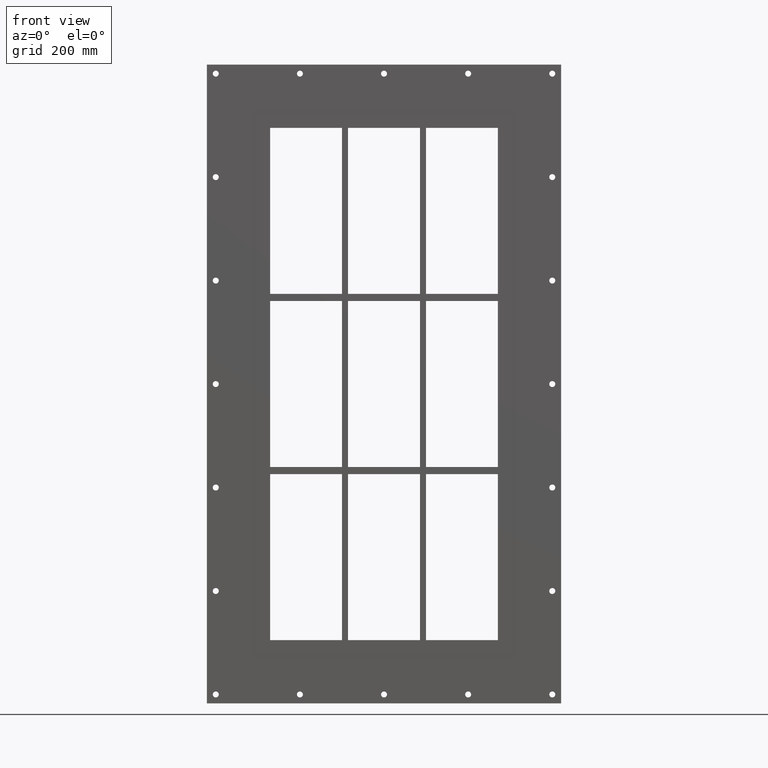
[diagram: clean part render]
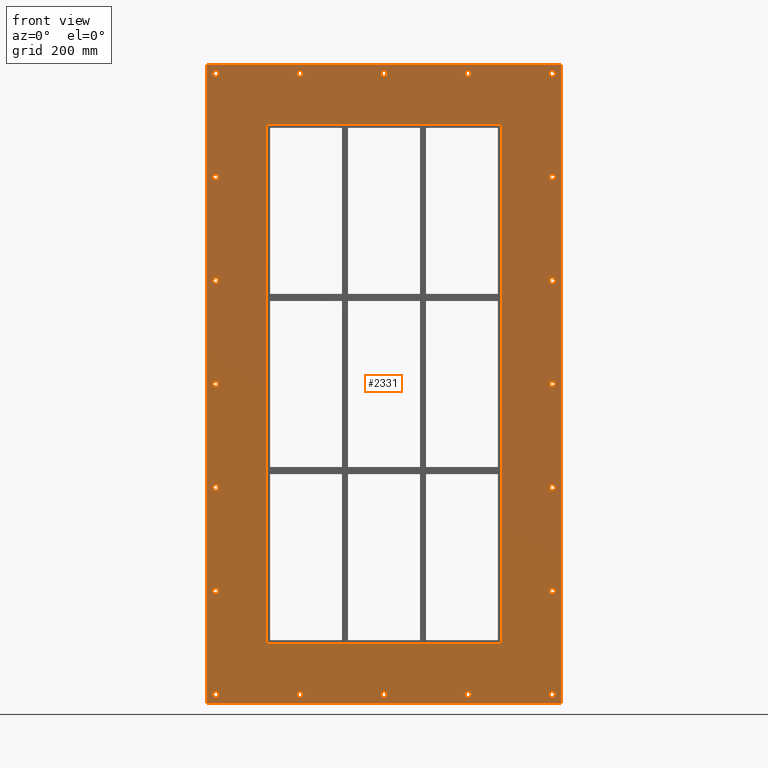
[diagram: same view with one face highlighted and labeled with its STEP entity id]
A machine part, front view. The second image highlights one B-rep face of the part: STEP entity #2331.
In plain terms, the highlighted planar face has unit normal (0, 1, 0).
Its self-contained STEP definition (entity closure, byte-faithful):
#84=CARTESIAN_POINT('',(-276.75000000000011,0.0,-519.99999999999977));
#85=VERTEX_POINT('',#84);
#86=CARTESIAN_POINT('',(-281.75000000000011,0.0,-519.99999999999977));
#87=DIRECTION('',(0.0,1.0,0.0));
#88=DIRECTION('',(1.0,0.0,0.0));
#89=AXIS2_PLACEMENT_3D('',#86,#87,#88);
#90=CIRCLE('',#89,5.0);
#91=EDGE_CURVE('',#85,#85,#90,.T.);
#112=CARTESIAN_POINT('',(286.84999999999997,0.0,-346.6999999999997));
#113=VERTEX_POINT('',#112);
#114=CARTESIAN_POINT('',(281.84999999999997,0.0,-346.6999999999997));
#115=DIRECTION('',(0.0,1.0,0.0));
#116=DIRECTION('',(1.0,0.0,0.0));
#117=AXIS2_PLACEMENT_3D('',#114,#115,#116);
#118=CIRCLE('',#117,5.0);
#119=EDGE_CURVE('',#113,#113,#118,.T.);
#140=CARTESIAN_POINT('',(-276.75000000000011,0.0,-346.6999999999997));
#141=VERTEX_POINT('',#140);
#142=CARTESIAN_POINT('',(-281.75000000000011,0.0,-346.6999999999997));
#143=DIRECTION('',(0.0,1.0,0.0));
#144=DIRECTION('',(1.0,0.0,0.0));
#145=AXIS2_PLACEMENT_3D('',#142,#143,#144);
#146=CIRCLE('',#145,5.0);
#147=EDGE_CURVE('',#141,#141,#146,.T.);
#168=CARTESIAN_POINT('',(286.84999999999997,0.0,-173.39999999999975));
#169=VERTEX_POINT('',#168);
#170=CARTESIAN_POINT('',(281.84999999999997,0.0,-173.39999999999975));
#171=DIRECTION('',(0.0,1.0,0.0));
#172=DIRECTION('',(1.0,0.0,0.0));
#173=AXIS2_PLACEMENT_3D('',#170,#171,#172);
#174=CIRCLE('',#173,5.0);
#175=EDGE_CURVE('',#169,#169,#174,.T.);
#196=CARTESIAN_POINT('',(-276.75000000000011,0.0,-173.39999999999975));
#197=VERTEX_POINT('',#196);
#198=CARTESIAN_POINT('',(-281.75000000000011,0.0,-173.39999999999975));
#199=DIRECTION('',(0.0,1.0,0.0));
#200=DIRECTION('',(1.0,0.0,0.0));
#201=AXIS2_PLACEMENT_3D('',#198,#199,#200);
#202=CIRCLE('',#201,5.0);
#203=EDGE_CURVE('',#197,#197,#202,.T.);
#224=CARTESIAN_POINT('',(286.84999999999997,0.0,-0.099999999999767));
#225=VERTEX_POINT('',#224);
#226=CARTESIAN_POINT('',(281.84999999999997,0.0,-0.099999999999767));
#227=DIRECTION('',(0.0,1.0,0.0));
#228=DIRECTION('',(1.0,0.0,0.0));
#229=AXIS2_PLACEMENT_3D('',#226,#227,#228);
#230=CIRCLE('',#229,5.0);
#231=EDGE_CURVE('',#225,#225,#230,.T.);
#252=CARTESIAN_POINT('',(-276.75000000000011,0.0,-0.099999999999767));
#253=VERTEX_POINT('',#252);
#254=CARTESIAN_POINT('',(-281.75000000000011,0.0,-0.099999999999767));
#255=DIRECTION('',(0.0,1.0,0.0));
#256=DIRECTION('',(1.0,0.0,0.0));
#257=AXIS2_PLACEMENT_3D('',#254,#255,#256);
#258=CIRCLE('',#257,5.0);
#259=EDGE_CURVE('',#253,#253,#258,.T.);
#280=CARTESIAN_POINT('',(286.84999999999997,0.0,173.20000000000022));
#281=VERTEX_POINT('',#280);
#282=CARTESIAN_POINT('',(281.84999999999997,0.0,173.20000000000022));
#283=DIRECTION('',(0.0,1.0,0.0));
#284=DIRECTION('',(1.0,0.0,0.0));
#285=AXIS2_PLACEMENT_3D('',#282,#283,#284);
#286=CIRCLE('',#285,5.0);
#287=EDGE_CURVE('',#281,#281,#286,.T.);
#308=CARTESIAN_POINT('',(-276.75000000000011,0.0,173.20000000000022));
#309=VERTEX_POINT('',#308);
#310=CARTESIAN_POINT('',(-281.75000000000011,0.0,173.20000000000022));
#311=DIRECTION('',(0.0,1.0,0.0));
#312=DIRECTION('',(1.0,0.0,0.0));
#313=AXIS2_PLACEMENT_3D('',#310,#311,#312);
#314=CIRCLE('',#313,5.0);
#315=EDGE_CURVE('',#309,#309,#314,.T.);
#336=CARTESIAN_POINT('',(286.84999999999997,0.0,346.50000000000023));
#337=VERTEX_POINT('',#336);
#338=CARTESIAN_POINT('',(281.84999999999997,0.0,346.50000000000023));
#339=DIRECTION('',(0.0,1.0,0.0));
#340=DIRECTION('',(1.0,0.0,0.0));
#341=AXIS2_PLACEMENT_3D('',#338,#339,#340);
#342=CIRCLE('',#341,5.0);
#343=EDGE_CURVE('',#337,#337,#342,.T.);
#364=CARTESIAN_POINT('',(-276.75000000000011,0.0,346.50000000000023));
#365=VERTEX_POINT('',#364);
#366=CARTESIAN_POINT('',(-281.75000000000011,0.0,346.50000000000023));
#367=DIRECTION('',(0.0,1.0,0.0));
#368=DIRECTION('',(1.0,0.0,0.0));
#369=AXIS2_PLACEMENT_3D('',#366,#367,#368);
#370=CIRCLE('',#369,5.0);
#371=EDGE_CURVE('',#365,#365,#370,.T.);
#392=CARTESIAN_POINT('',(-135.85000000000005,0.0,519.80000000000018));
#393=VERTEX_POINT('',#392);
#394=CARTESIAN_POINT('',(-140.85000000000005,0.0,519.80000000000018));
#395=DIRECTION('',(0.0,1.0,0.0));
#396=DIRECTION('',(1.0,0.0,0.0));
#397=AXIS2_PLACEMENT_3D('',#394,#395,#396);
#398=CIRCLE('',#397,5.0);
#399=EDGE_CURVE('',#393,#393,#398,.T.);
#420=CARTESIAN_POINT('',(-135.85000000000005,0.0,-520.0));
#421=VERTEX_POINT('',#420);
#422=CARTESIAN_POINT('',(-140.85000000000005,0.0,-520.0));
#423=DIRECTION('',(0.0,1.0,0.0));
#424=DIRECTION('',(1.0,0.0,0.0));
#425=AXIS2_PLACEMENT_3D('',#422,#423,#424);
#426=CIRCLE('',#425,5.0);
#427=EDGE_CURVE('',#421,#421,#426,.T.);
#448=CARTESIAN_POINT('',(5.049999999999919,0.0,519.80000000000018));
#449=VERTEX_POINT('',#448);
#450=CARTESIAN_POINT('',(0.049999999999919,0.0,519.80000000000018));
#451=DIRECTION('',(0.0,1.0,0.0));
#452=DIRECTION('',(1.0,0.0,0.0));
#453=AXIS2_PLACEMENT_3D('',#450,#451,#452);
#454=CIRCLE('',#453,5.0);
#455=EDGE_CURVE('',#449,#449,#454,.T.);
#476=CARTESIAN_POINT('',(5.049999999999919,0.0,-520.0));
#477=VERTEX_POINT('',#476);
#478=CARTESIAN_POINT('',(0.049999999999919,0.0,-520.0));
#479=DIRECTION('',(0.0,1.0,0.0));
#480=DIRECTION('',(1.0,0.0,0.0));
#481=AXIS2_PLACEMENT_3D('',#478,#479,#480);
#482=CIRCLE('',#481,5.0);
#483=EDGE_CURVE('',#477,#477,#482,.T.);
#504=CARTESIAN_POINT('',(145.94999999999993,0.0,519.80000000000018));
#505=VERTEX_POINT('',#504);
#506=CARTESIAN_POINT('',(140.94999999999993,0.0,519.80000000000018));
#507=DIRECTION('',(0.0,1.0,0.0));
#508=DIRECTION('',(1.0,0.0,0.0));
#509=AXIS2_PLACEMENT_3D('',#506,#507,#508);
#510=CIRCLE('',#509,5.0);
#511=EDGE_CURVE('',#505,#505,#510,.T.);
#532=CARTESIAN_POINT('',(145.94999999999993,0.0,-520.0));
#533=VERTEX_POINT('',#532);
#534=CARTESIAN_POINT('',(140.94999999999993,0.0,-520.0));
#535=DIRECTION('',(0.0,1.0,0.0));
#536=DIRECTION('',(1.0,0.0,0.0));
#537=AXIS2_PLACEMENT_3D('',#534,#535,#536);
#538=CIRCLE('',#537,5.0);
#539=EDGE_CURVE('',#533,#533,#538,.T.);
#560=CARTESIAN_POINT('',(286.84999999999997,0.0,-520.0));
#561=VERTEX_POINT('',#560);
#562=CARTESIAN_POINT('',(281.84999999999997,0.0,-520.0));
#563=DIRECTION('',(0.0,1.0,0.0));
#564=DIRECTION('',(1.0,0.0,0.0));
#565=AXIS2_PLACEMENT_3D('',#562,#563,#564);
#566=CIRCLE('',#565,5.0);
#567=EDGE_CURVE('',#561,#561,#566,.T.);
#588=CARTESIAN_POINT('',(-276.75000000000011,0.0,519.80000000000018));
#589=VERTEX_POINT('',#588);
#590=CARTESIAN_POINT('',(-281.75000000000011,0.0,519.80000000000018));
#591=DIRECTION('',(0.0,1.0,0.0));
#592=DIRECTION('',(1.0,0.0,0.0));
#593=AXIS2_PLACEMENT_3D('',#590,#591,#592);
#594=CIRCLE('',#593,5.0);
#595=EDGE_CURVE('',#589,#589,#594,.T.);
#616=CARTESIAN_POINT('',(286.84999999999997,0.0,519.80000000000018));
#617=VERTEX_POINT('',#616);
#618=CARTESIAN_POINT('',(281.84999999999997,0.0,519.80000000000018));
#619=DIRECTION('',(0.0,1.0,0.0));
#620=DIRECTION('',(1.0,0.0,0.0));
#621=AXIS2_PLACEMENT_3D('',#618,#619,#620);
#622=CIRCLE('',#621,5.0);
#623=EDGE_CURVE('',#617,#617,#622,.T.);
#2162=CARTESIAN_POINT('',(0.0,0.0,2.050259E-014));
#2163=DIRECTION('',(0.0,1.0,0.0));
#2164=DIRECTION('',(0.0,0.0,1.0));
#2165=AXIS2_PLACEMENT_3D('',#2162,#2163,#2164);
#2166=PLANE('',#2165);
#2167=CARTESIAN_POINT('',(-296.75000000000006,0.0,535.00000000000011));
#2168=VERTEX_POINT('',#2167);
#2169=CARTESIAN_POINT('',(296.75000000000006,0.0,535.00000000000011));
#2170=VERTEX_POINT('',#2169);
#2171=CARTESIAN_POINT('',(-296.75000000000006,0.0,535.00000000000011));
#2172=DIRECTION('',(1.0,0.0,0.0));
#2173=VECTOR('',#2172,593.50000000000011);
#2174=LINE('',#2171,#2173);
#2175=EDGE_CURVE('',#2168,#2170,#2174,.T.);
#2176=ORIENTED_EDGE('',*,*,#2175,.F.);
#2177=CARTESIAN_POINT('',(-296.75000000000006,0.0,-535.0));
#2178=VERTEX_POINT('',#2177);
#2179=CARTESIAN_POINT('',(-296.75000000000006,0.0,-535.0));
#2180=DIRECTION('',(0.0,0.0,1.0));
#2181=VECTOR('',#2180,1070.0);
#2182=LINE('',#2179,#2181);
#2183=EDGE_CURVE('',#2178,#2168,#2182,.T.);
#2184=ORIENTED_EDGE('',*,*,#2183,.F.);
#2185=CARTESIAN_POINT('',(296.75000000000006,0.0,-535.0));
#2186=VERTEX_POINT('',#2185);
#2187=CARTESIAN_POINT('',(296.75000000000006,0.0,-535.0));
#2188=DIRECTION('',(-1.0,0.0,0.0));
#2189=VECTOR('',#2188,593.50000000000011);
#2190=LINE('',#2187,#2189);
#2191=EDGE_CURVE('',#2186,#2178,#2190,.T.);
#2192=ORIENTED_EDGE('',*,*,#2191,.F.);
#2193=CARTESIAN_POINT('',(296.75000000000006,0.0,535.00000000000011));
#2194=DIRECTION('',(0.0,0.0,-1.0));
#2195=VECTOR('',#2194,1070.0);
#2196=LINE('',#2193,#2195);
#2197=EDGE_CURVE('',#2170,#2186,#2196,.T.);
#2198=ORIENTED_EDGE('',*,*,#2197,.F.);
#2199=EDGE_LOOP('',(#2176,#2184,#2192,#2198));
#2200=FACE_OUTER_BOUND('',#2199,.T.);
#2201=ORIENTED_EDGE('',*,*,#91,.T.);
#2202=EDGE_LOOP('',(#2201));
#2203=FACE_BOUND('',#2202,.T.);
#2204=ORIENTED_EDGE('',*,*,#119,.T.);
#2205=EDGE_LOOP('',(#2204));
#2206=FACE_BOUND('',#2205,.T.);
#2207=ORIENTED_EDGE('',*,*,#147,.T.);
#2208=EDGE_LOOP('',(#2207));
#2209=FACE_BOUND('',#2208,.T.);
#2210=ORIENTED_EDGE('',*,*,#175,.T.);
#2211=EDGE_LOOP('',(#2210));
#2212=FACE_BOUND('',#2211,.T.);
#2213=ORIENTED_EDGE('',*,*,#203,.T.);
#2214=EDGE_LOOP('',(#2213));
#2215=FACE_BOUND('',#2214,.T.);
#2216=ORIENTED_EDGE('',*,*,#231,.T.);
#2217=EDGE_LOOP('',(#2216));
#2218=FACE_BOUND('',#2217,.T.);
#2219=ORIENTED_EDGE('',*,*,#259,.T.);
#2220=EDGE_LOOP('',(#2219));
#2221=FACE_BOUND('',#2220,.T.);
#2222=ORIENTED_EDGE('',*,*,#287,.T.);
#2223=EDGE_LOOP('',(#2222));
#2224=FACE_BOUND('',#2223,.T.);
#2225=ORIENTED_EDGE('',*,*,#315,.T.);
#2226=EDGE_LOOP('',(#2225));
#2227=FACE_BOUND('',#2226,.T.);
#2228=ORIENTED_EDGE('',*,*,#343,.T.);
#2229=EDGE_LOOP('',(#2228));
#2230=FACE_BOUND('',#2229,.T.);
#2231=ORIENTED_EDGE('',*,*,#371,.T.);
#2232=EDGE_LOOP('',(#2231));
#2233=FACE_BOUND('',#2232,.T.);
#2234=ORIENTED_EDGE('',*,*,#399,.T.);
#2235=EDGE_LOOP('',(#2234));
#2236=FACE_BOUND('',#2235,.T.);
#2237=ORIENTED_EDGE('',*,*,#427,.T.);
#2238=EDGE_LOOP('',(#2237));
#2239=FACE_BOUND('',#2238,.T.);
#2240=ORIENTED_EDGE('',*,*,#455,.T.);
#2241=EDGE_LOOP('',(#2240));
#2242=FACE_BOUND('',#2241,.T.);
#2243=ORIENTED_EDGE('',*,*,#483,.T.);
#2244=EDGE_LOOP('',(#2243));
#2245=FACE_BOUND('',#2244,.T.);
#2246=ORIENTED_EDGE('',*,*,#511,.T.);
#2247=EDGE_LOOP('',(#2246));
#2248=FACE_BOUND('',#2247,.T.);
#2249=ORIENTED_EDGE('',*,*,#539,.T.);
#2250=EDGE_LOOP('',(#2249));
#2251=FACE_BOUND('',#2250,.T.);
#2252=ORIENTED_EDGE('',*,*,#567,.T.);
#2253=EDGE_LOOP('',(#2252));
#2254=FACE_BOUND('',#2253,.T.);
#2255=ORIENTED_EDGE('',*,*,#595,.T.);
#2256=EDGE_LOOP('',(#2255));
#2257=FACE_BOUND('',#2256,.T.);
#2258=ORIENTED_EDGE('',*,*,#623,.T.);
#2259=EDGE_LOOP('',(#2258));
#2260=FACE_BOUND('',#2259,.T.);
#2261=CARTESIAN_POINT('',(-196.75,0.0,-429.00000000000023));
#2262=VERTEX_POINT('',#2261);
#2263=CARTESIAN_POINT('',(-190.75,0.0,-435.00000000000011));
#2264=VERTEX_POINT('',#2263);
#2265=CARTESIAN_POINT('',(-190.75,0.0,-429.00000000000023));
#2266=DIRECTION('',(0.0,-1.0,0.0));
#2267=DIRECTION('',(-0.707106781186552,0.0,-0.707106781186543));
#2268=AXIS2_PLACEMENT_3D('',#2265,#2266,#2267);
#2269=CIRCLE('',#2268,6.000000000000001);
#2270=EDGE_CURVE('',#2262,#2264,#2269,.T.);
#2271=ORIENTED_EDGE('',*,*,#2270,.F.);
#2272=CARTESIAN_POINT('',(-196.75,0.0,428.99999999999989));
#2273=VERTEX_POINT('',#2272);
#2274=CARTESIAN_POINT('',(-196.75,0.0,428.99999999999994));
#2275=DIRECTION('',(0.0,0.0,-1.0));
#2276=VECTOR('',#2275,858.00000000000011);
#2277=LINE('',#2274,#2276);
#2278=EDGE_CURVE('',#2273,#2262,#2277,.T.);
#2279=ORIENTED_EDGE('',*,*,#2278,.F.);
#2280=CARTESIAN_POINT('',(-190.75,0.0,435.0));
#2281=VERTEX_POINT('',#2280);
#2282=CARTESIAN_POINT('',(-190.75,0.0,428.99999999999989));
#2283=DIRECTION('',(0.0,-1.0,0.0));
#2284=DIRECTION('',(-0.707106781186543,0.0,0.707106781186552));
#2285=AXIS2_PLACEMENT_3D('',#2282,#2283,#2284);
#2286=CIRCLE('',#2285,6.0);
#2287=EDGE_CURVE('',#2281,#2273,#2286,.T.);
#2288=ORIENTED_EDGE('',*,*,#2287,.F.);
#2289=CARTESIAN_POINT('',(190.75000000000006,0.0,435.0));
#2290=VERTEX_POINT('',#2289);
#2291=CARTESIAN_POINT('',(190.75000000000011,0.0,435.0));
#2292=DIRECTION('',(-1.0,0.0,0.0));
#2293=VECTOR('',#2292,381.50000000000011);
#2294=LINE('',#2291,#2293);
#2295=EDGE_CURVE('',#2290,#2281,#2294,.T.);
#2296=ORIENTED_EDGE('',*,*,#2295,.F.);
#2297=CARTESIAN_POINT('',(196.75000000000009,0.0,429.0));
#2298=VERTEX_POINT('',#2297);
#2299=CARTESIAN_POINT('',(190.75000000000006,0.0,429.0));
#2300=DIRECTION('',(0.0,-1.0,0.0));
#2301=DIRECTION('',(0.707106781186543,0.0,0.707106781186552));
#2302=AXIS2_PLACEMENT_3D('',#2299,#2300,#2301);
#2303=CIRCLE('',#2302,6.0);
#2304=EDGE_CURVE('',#2298,#2290,#2303,.T.);
#2305=ORIENTED_EDGE('',*,*,#2304,.F.);
#2306=CARTESIAN_POINT('',(196.75000000000009,0.0,-429.00000000000006));
#2307=VERTEX_POINT('',#2306);
#2308=CARTESIAN_POINT('',(196.75000000000009,0.0,-429.0));
#2309=DIRECTION('',(0.0,0.0,1.0));
#2310=VECTOR('',#2309,858.0);
#2311=LINE('',#2308,#2310);
#2312=EDGE_CURVE('',#2307,#2298,#2311,.T.);
#2313=ORIENTED_EDGE('',*,*,#2312,.F.);
#2314=CARTESIAN_POINT('',(190.75000000000006,0.0,-435.00000000000011));
#2315=VERTEX_POINT('',#2314);
#2316=CARTESIAN_POINT('',(190.75000000000006,0.0,-429.00000000000006));
#2317=DIRECTION('',(0.0,-1.0,0.0));
#2318=DIRECTION('',(0.707106781186543,0.0,-0.707106781186552));
#2319=AXIS2_PLACEMENT_3D('',#2316,#2317,#2318);
#2320=CIRCLE('',#2319,6.0);
#2321=EDGE_CURVE('',#2315,#2307,#2320,.T.);
#2322=ORIENTED_EDGE('',*,*,#2321,.F.);
#2323=CARTESIAN_POINT('',(-190.74999999999994,0.0,-435.00000000000011));
#2324=DIRECTION('',(1.0,0.0,0.0));
#2325=VECTOR('',#2324,381.5);
#2326=LINE('',#2323,#2325);
#2327=EDGE_CURVE('',#2264,#2315,#2326,.T.);
#2328=ORIENTED_EDGE('',*,*,#2327,.F.);
#2329=EDGE_LOOP('',(#2271,#2279,#2288,#2296,#2305,#2313,#2322,#2328));
#2330=FACE_BOUND('',#2329,.T.);
#2331=ADVANCED_FACE('',(#2200,#2203,#2206,#2209,#2212,#2215,#2218,#2221,#2224,#2227,#2230,#2233,#2236,#2239,#2242,#2245,#2248,#2251,#2254,#2257,#2260,#2330),#2166,.F.);